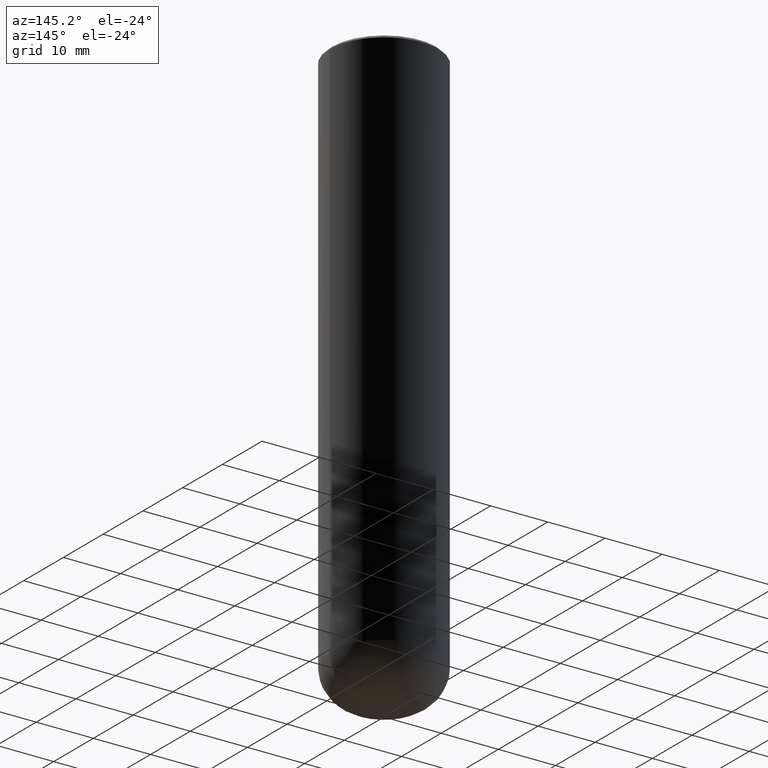
[diagram: clean part render]
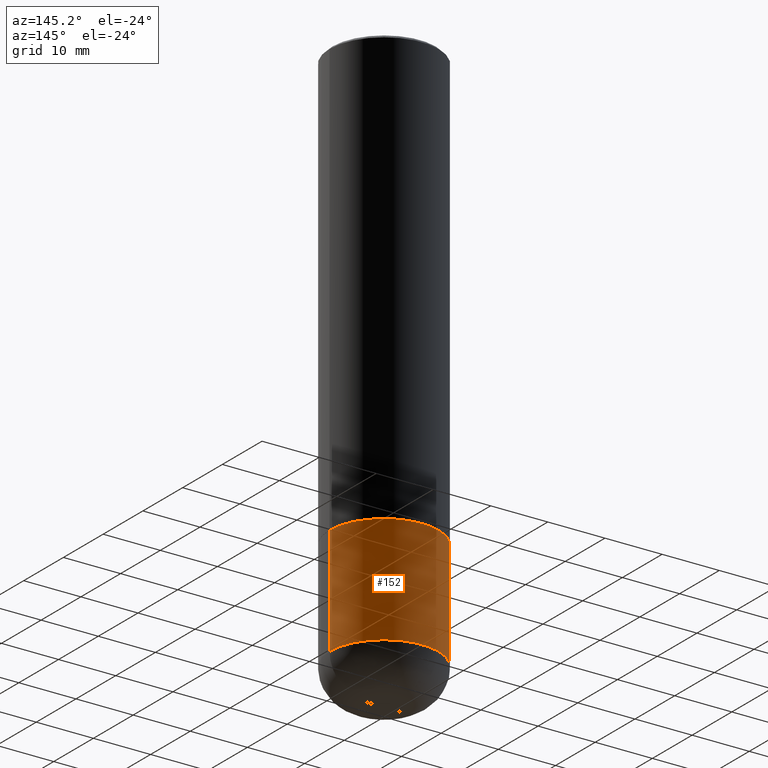
[diagram: same view with one face highlighted and labeled with its STEP entity id]
A machine part, auxiliary view. The second image highlights one B-rep face of the part: STEP entity #152.
In plain terms, the highlighted cylindrical surface (partial cylindrical patch) has radius 9.525 mm, axis along (-0, 0, 1).
Its self-contained STEP definition (entity closure, byte-faithful):
#4 = DIRECTION ( 'NONE',  ( -2.445468806185136877E-29, 3.491481338843145188E-15, 1.000000000000000000 ) ) ;
#12 = EDGE_CURVE ( 'NONE', #399, #366, #239, .T. ) ;
#29 = CARTESIAN_POINT ( 'NONE',  ( -0.3749999999999997780, 2.664535259100374119E-15, -1.844600658845588477E-29 ) ) ;
#32 = DIRECTION ( 'NONE',  ( -2.445468806185136597E-29, 3.491481338843145583E-15, 1.000000000000000000 ) ) ;
#65 = EDGE_CURVE ( 'NONE', #265, #366, #176, .T. ) ;
#104 = DIRECTION ( 'NONE',  ( -2.445468806185136877E-29, 3.491481338843145188E-15, 1.000000000000000000 ) ) ;
#108 = ORIENTED_EDGE ( 'NONE', *, *, #236, .F. ) ;
#120 = VERTEX_POINT ( 'NONE', #131 ) ;
#131 = CARTESIAN_POINT ( 'NONE',  ( 0.3750000000000000555, -1.571169926102186855E-14, -3.750009519233957089 ) ) ;
#140 = VECTOR ( 'NONE', #4, 39.37007874015748143 ) ;
#152 = ADVANCED_FACE ( 'NONE', ( #449 ), #328, .T. ) ;
#174 = DIRECTION ( 'NONE',  ( -2.445468806185136597E-29, 3.491481338843145583E-15, 1.000000000000000000 ) ) ;
#176 = LINE ( 'NONE', #29, #417 ) ;
#205 = DIRECTION ( 'NONE',  ( -2.445468806185136597E-29, 3.491481338843145583E-15, 1.000000000000000000 ) ) ;
#218 = CARTESIAN_POINT ( 'NONE',  ( 0.000000000000000000, 0.000000000000000000, 0.000000000000000000 ) ) ;
#225 = AXIS2_PLACEMENT_3D ( 'NONE', #333, #205, #448 ) ;
#236 = EDGE_CURVE ( 'NONE', #120, #399, #421, .T. ) ;
#239 = CIRCLE ( 'NONE', #345, 0.3749999999999995004 ) ;
#265 = VERTEX_POINT ( 'NONE', #384 ) ;
#276 = AXIS2_PLACEMENT_3D ( 'NONE', #218, #32, #478 ) ;
#283 = ORIENTED_EDGE ( 'NONE', *, *, #397, .T. ) ;
#286 = ORIENTED_EDGE ( 'NONE', *, *, #12, .F. ) ;
#328 = CYLINDRICAL_SURFACE ( 'NONE', #276, 0.3749999999999997780 ) ;
#333 = CARTESIAN_POINT ( 'NONE',  ( 9.170531302183963183E-29, -1.309308825688951696E-14, -3.750009519233957089 ) ) ;
#345 = AXIS2_PLACEMENT_3D ( 'NONE', #392, #174, #353 ) ;
#353 = DIRECTION ( 'NONE',  ( 1.000000000000000000, -6.982962677686266711E-15, 0.000000000000000000 ) ) ;
#366 = VERTEX_POINT ( 'NONE', #388 ) ;
#384 = CARTESIAN_POINT ( 'NONE',  ( -0.3750000000000000555, -9.119230877609100958E-15, -3.750009519233957089 ) ) ;
#388 = CARTESIAN_POINT ( 'NONE',  ( -0.3749999999999995004, -9.119230877609102536E-15, -2.999999999999999556 ) ) ;
#390 = ORIENTED_EDGE ( 'NONE', *, *, #65, .T. ) ;
#392 = CARTESIAN_POINT ( 'NONE',  ( 7.336406418555408669E-29, -1.047444401652943478E-14, -2.999999999999999556 ) ) ;
#397 = EDGE_CURVE ( 'NONE', #120, #265, #483, .T. ) ;
#399 = VERTEX_POINT ( 'NONE', #484 ) ;
#406 = EDGE_LOOP ( 'NONE', ( #283, #390, #286, #108 ) ) ;
#417 = VECTOR ( 'NONE', #104, 39.37007874015748143 ) ;
#421 = LINE ( 'NONE', #489, #140 ) ;
#448 = DIRECTION ( 'NONE',  ( 1.000000000000000000, -6.982962677686266711E-15, 0.000000000000000000 ) ) ;
#449 = FACE_OUTER_BOUND ( 'NONE', #406, .T. ) ;
#478 = DIRECTION ( 'NONE',  ( 1.000000000000000000, -6.982962677686265922E-15, 4.876176775795935793E-29 ) ) ;
#483 = CIRCLE ( 'NONE', #225, 0.3750000000000000555 ) ;
#484 = CARTESIAN_POINT ( 'NONE',  ( 0.3749999999999995004, -1.309305502066178164E-14, -2.999999999999999556 ) ) ;
#489 = CARTESIAN_POINT ( 'NONE',  ( 0.3749999999999997780, -2.618611004132348044E-15, 1.828566290923474801E-29 ) ) ;